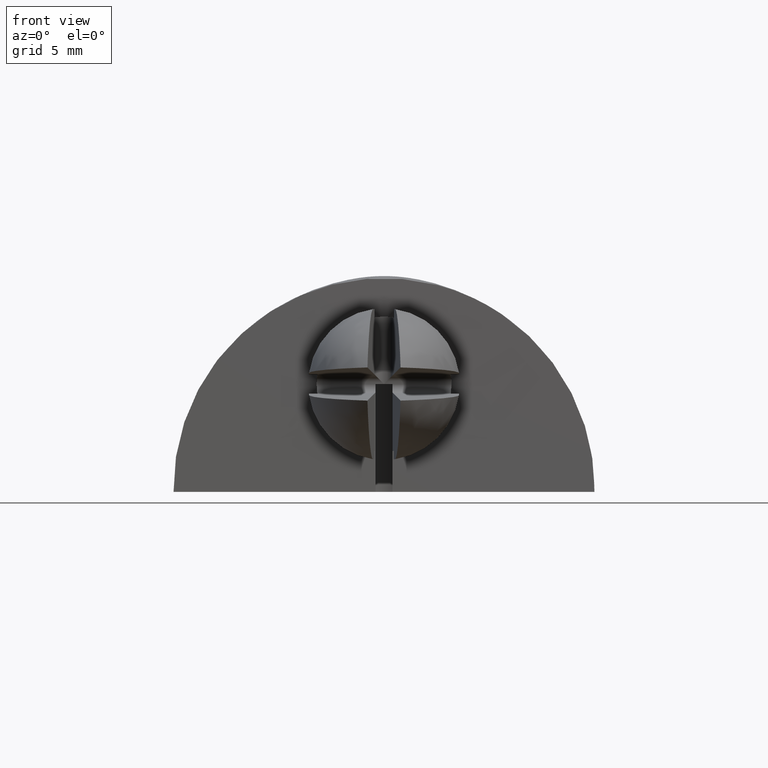
[diagram: clean part render]
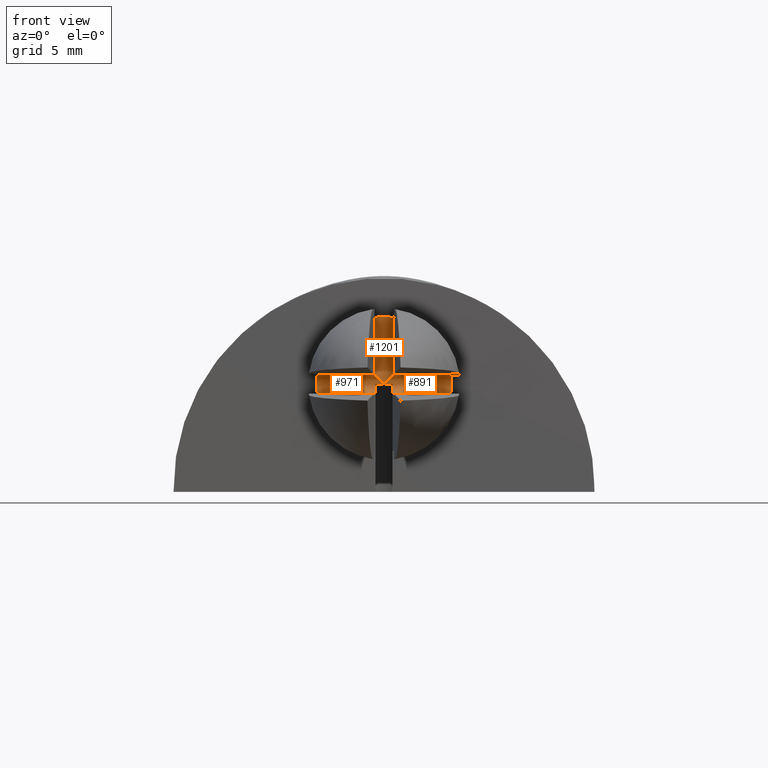
[diagram: same view with one multi-face feature highlighted, each face labeled with its STEP entity id]
A machine part, front view. The highlighted faces form ONE feature: a constant-radius fillet chain: 3 tangent blend faces with common blend radius 0.5463 mm. The faces share edges in the B-rep.
Their STEP definitions:
[1] entity #1201 (Cylinder):
#750=CARTESIAN_POINT('',(-0.545732086754612,-13.521886323051802,6.952727216294299));
#751=VERTEX_POINT('',#750);
#778=CARTESIAN_POINT('',(0.545732236117971,-13.521886323051802,6.952727216294299));
#779=VERTEX_POINT('',#778);
#838=CARTESIAN_POINT('',(0.000000074681687,-13.000313095812857,6.406995054858143));
#839=VERTEX_POINT('',#838);
#840=CARTESIAN_POINT('',(0.000000074681687,-13.000313095812857,6.406995054858143));
#841=CARTESIAN_POINT('',(0.054169785032137,-13.000306371065172,6.461164765208373));
#842=CARTESIAN_POINT('',(0.145354811590686,-13.013761102557666,6.552349791767163));
#843=CARTESIAN_POINT('',(0.257480881406956,-13.061298732863925,6.664475861583334));
#844=CARTESIAN_POINT('',(0.336144810935053,-13.113331745145452,6.743139791111439));
#845=CARTESIAN_POINT('',(0.396880929128812,-13.168286348849989,6.803875909305205));
#846=CARTESIAN_POINT('',(0.447912579797816,-13.230528566706532,6.854907559974201));
#847=CARTESIAN_POINT('',(0.494726204303738,-13.308286192255053,6.901721184480117));
#848=CARTESIAN_POINT('',(0.526743578818113,-13.391575698913329,6.933738558994499));
#849=CARTESIAN_POINT('',(0.541730803443777,-13.468574123877190,6.948725783620169));
#850=CARTESIAN_POINT('',(0.545056550351006,-13.506968579647939,6.952051530527363));
#851=CARTESIAN_POINT('',(0.545732236117971,-13.521886323051788,6.952727216294328));
#852=B_SPLINE_CURVE_WITH_KNOTS('',3,(#840,#841,#842,#843,#844,#845,#846,#847,#848,#849,#850,#851),.UNSPECIFIED.,.F.,.U.,(4,1,1,1,1,1,1,1,1,4),(10.187123041055859,12.485012343962701,14.055022829608575,15.136816794203327,16.161915738262429,17.106869546925196,17.987929486375847,19.216234108672943,19.925649110440105,20.374335947239640),.UNSPECIFIED.);
#853=EDGE_CURVE('',#839,#779,#852,.T.);
#954=CARTESIAN_POINT('',(-0.545732086754597,-13.521886323051788,6.952727216294328));
#955=CARTESIAN_POINT('',(-0.545056400987647,-13.506968579647896,6.952051530527363));
#956=CARTESIAN_POINT('',(-0.541730654080361,-13.468574123877119,6.948725783620162));
#957=CARTESIAN_POINT('',(-0.526743429454704,-13.391575698913201,6.933738558994456));
#958=CARTESIAN_POINT('',(-0.494726054940273,-13.308286192254926,6.901721184480067));
#959=CARTESIAN_POINT('',(-0.447912430434343,-13.230528566706383,6.854907559974116));
#960=CARTESIAN_POINT('',(-0.396880779765311,-13.168286348849854,6.803875909305098));
#961=CARTESIAN_POINT('',(-0.336144661571510,-13.113331745145338,6.743139791111297));
#962=CARTESIAN_POINT('',(-0.257480732043376,-13.061298732863833,6.664475861583178));
#963=CARTESIAN_POINT('',(-0.145354662227184,-13.013761102557616,6.552349791767043));
#964=CARTESIAN_POINT('',(-0.054169635668735,-13.000306371065193,6.461164765208267));
#965=CARTESIAN_POINT('',(0.000000074681687,-13.000313095812857,6.406995054858143));
#966=B_SPLINE_CURVE_WITH_KNOTS('',3,(#954,#955,#956,#957,#958,#959,#960,#961,#962,#963,#964,#965),.UNSPECIFIED.,.F.,.U.,(4,1,1,1,1,1,1,1,1,4),(0.0,0.448686836800807,1.158101838568068,2.386406460865503,3.267466400316445,4.212420208979411,5.237519153038774,6.319313117633659,7.889323603279465,10.187212906183920),.UNSPECIFIED.);
#967=EDGE_CURVE('',#751,#839,#966,.T.);
#1080=CARTESIAN_POINT('',(0.545732236117971,-13.521886323051802,10.362189495886689));
#1081=VERTEX_POINT('',#1080);
#1095=CARTESIAN_POINT('',(0.545732236117971,-13.521886323051802,6.952727216294299));
#1096=DIRECTION('',(0.0,0.0,1.0));
#1097=VECTOR('',#1096,3.409462279592390);
#1098=LINE('',#1095,#1097);
#1099=EDGE_CURVE('',#779,#1081,#1098,.T.);
#1163=CARTESIAN_POINT('',(0.000000074681687,-13.546604770344373,6.406995044858143));
#1164=DIRECTION('',(0.0,0.0,1.0));
#1165=DIRECTION('',(0.0,-1.0,0.0));
#1166=AXIS2_PLACEMENT_3D('',#1163,#1164,#1165);
#1167=CYLINDRICAL_SURFACE('',#1166,0.546291674531530);
#1168=ORIENTED_EDGE('',*,*,#967,.T.);
#1169=ORIENTED_EDGE('',*,*,#853,.T.);
#1170=ORIENTED_EDGE('',*,*,#1099,.T.);
#1171=CARTESIAN_POINT('',(-0.545732086754612,-13.521886323051802,10.362189495886689));
#1172=VERTEX_POINT('',#1171);
#1173=CARTESIAN_POINT('',(0.545732236117971,-13.521886323051802,10.362189495886689));
#1174=CARTESIAN_POINT('',(0.544255389469214,-13.489280605378994,10.362392888428793));
#1175=CARTESIAN_POINT('',(0.533368409645114,-13.409029675543088,10.363896022958130));
#1176=CARTESIAN_POINT('',(0.495410695762502,-13.307085128846261,10.368921958798829));
#1177=CARTESIAN_POINT('',(0.427820641655281,-13.199905709918568,10.376853876333740));
#1178=CARTESIAN_POINT('',(0.345705194983388,-13.116598496113440,10.385111765135804));
#1179=CARTESIAN_POINT('',(0.235007226867566,-13.048808348530606,10.393154326304092));
#1180=CARTESIAN_POINT('',(0.125477906491604,-13.010618597278487,10.398174672796564));
#1181=CARTESIAN_POINT('',(0.010409533561294,-12.996569983093437,10.400108450307123));
#1182=CARTESIAN_POINT('',(-0.105477080465910,-13.006276123303692,10.398767502548871));
#1183=CARTESIAN_POINT('',(-0.217032627878162,-13.040639755199145,10.394194926709261));
#1184=CARTESIAN_POINT('',(-0.330594908791824,-13.104836642121668,10.386421109854943));
#1185=CARTESIAN_POINT('',(-0.415609303080174,-13.185376902245039,10.378168039896103));
#1186=CARTESIAN_POINT('',(-0.488449904273118,-13.292484344223880,10.369814087496756));
#1187=CARTESIAN_POINT('',(-0.531529227192713,-13.399298542108447,10.364152345256876));
#1188=CARTESIAN_POINT('',(-0.544101139563764,-13.485878384320635,10.362414111282924));
#1189=CARTESIAN_POINT('',(-0.545732086754597,-13.521886323051802,10.362189495886689));
#1190=B_SPLINE_CURVE_WITH_KNOTS('',3,(#1173,#1174,#1175,#1176,#1177,#1178,#1179,#1180,#1181,#1182,#1183,#1184,#1185,#1186,#1187,#1188,#1189),.UNSPECIFIED.,.F.,.U.,(4,1,1,1,1,1,1,1,1,1,1,1,1,1,4),(0.0,0.980514617253305,2.417675436339381,3.239777989345114,4.778227823504796,5.901489211682783,7.120754699721731,8.239593074391896,9.361068997811255,10.591005222097618,11.721787900739772,13.260473237115718,14.078752806030783,15.604496281725648,16.687637391440184),.UNSPECIFIED.);
#1191=EDGE_CURVE('',#1081,#1172,#1190,.T.);
#1192=ORIENTED_EDGE('',*,*,#1191,.T.);
#1193=CARTESIAN_POINT('',(-0.545732086754612,-13.521886323051802,6.952727216294299));
#1194=DIRECTION('',(0.0,0.0,1.0));
#1195=VECTOR('',#1194,3.409462279592390);
#1196=LINE('',#1193,#1195);
#1197=EDGE_CURVE('',#751,#1172,#1196,.T.);
#1198=ORIENTED_EDGE('',*,*,#1197,.F.);
#1199=EDGE_LOOP('',(#1168,#1169,#1170,#1192,#1198));
#1200=FACE_OUTER_BOUND('',#1199,.T.);
#1201=ADVANCED_FACE('',(#1200),#1167,.F.);
[2] entity #971 (Cylinder):
#735=CARTESIAN_POINT('',(-3.961570545964349,-13.521886323051802,6.952727216294299));
#736=VERTEX_POINT('',#735);
#750=CARTESIAN_POINT('',(-0.545732086754612,-13.521886323051802,6.952727216294299));
#751=VERTEX_POINT('',#750);
#752=CARTESIAN_POINT('',(-0.545732086754612,-13.521886323051802,6.952727216294299));
#753=DIRECTION('',(-1.0,0.0,0.0));
#754=VECTOR('',#753,3.415838459209738);
#755=LINE('',#752,#754);
#756=EDGE_CURVE('',#751,#736,#755,.T.);
#838=CARTESIAN_POINT('',(0.000000074681687,-13.000313095812857,6.406995054858143));
#839=VERTEX_POINT('',#838);
#892=CARTESIAN_POINT('',(0.000048969066931,-13.546604770344352,6.406995054858122));
#893=DIRECTION('',(-1.0,0.0,0.0));
#894=DIRECTION('',(0.0,-1.0,0.0));
#895=AXIS2_PLACEMENT_3D('',#892,#893,#894);
#896=CYLINDRICAL_SURFACE('',#895,0.546291674531454);
#897=ORIENTED_EDGE('',*,*,#756,.T.);
#898=CARTESIAN_POINT('',(-3.963609572156081,-13.521886323051859,5.861262893421902));
#899=VERTEX_POINT('',#898);
#900=CARTESIAN_POINT('',(-3.961570545964349,-13.521886323051767,6.952727216294328));
#901=CARTESIAN_POINT('',(-3.961776671543483,-13.489293153799252,6.951250938014994));
#902=CARTESIAN_POINT('',(-3.963299943568167,-13.409052933410813,6.940368177642647));
#903=CARTESIAN_POINT('',(-3.968396842078860,-13.307114120425041,6.902420003060357));
#904=CARTESIAN_POINT('',(-3.976456725372117,-13.199922084041468,6.834830415353082));
#905=CARTESIAN_POINT('',(-3.984869936475633,-13.116602846286042,6.752707591295199));
#906=CARTESIAN_POINT('',(-3.993119646617998,-13.048807410347294,6.642001224971722));
#907=CARTESIAN_POINT('',(-3.998343200563546,-13.010618538866261,6.532471229628008));
#908=CARTESIAN_POINT('',(-4.000489807900969,-12.996570953891073,6.417410992895164));
#909=CARTESIAN_POINT('',(-3.999363805923558,-13.006273266768417,6.301538986160246));
#910=CARTESIAN_POINT('',(-3.994999353834693,-13.040627078736073,6.189994216057350));
#911=CARTESIAN_POINT('',(-3.987438112076980,-13.104812975494028,6.076431479700197));
#912=CARTESIAN_POINT('',(-3.979344244584304,-13.185350484718988,5.991407862862836));
#913=CARTESIAN_POINT('',(-3.971126173162695,-13.292469067678731,5.918550940943433));
#914=CARTESIAN_POINT('',(-3.965545381854625,-13.399294739491580,5.875465747697660));
#915=CARTESIAN_POINT('',(-3.963831064456159,-13.485881576797439,5.862893696012399));
#916=CARTESIAN_POINT('',(-3.963609572156081,-13.521886323051824,5.861262893421930));
#917=B_SPLINE_CURVE_WITH_KNOTS('',3,(#900,#901,#902,#903,#904,#905,#906,#907,#908,#909,#910,#911,#912,#913,#914,#915,#916),.UNSPECIFIED.,.F.,.U.,(4,1,1,1,1,1,1,1,1,1,1,1,1,1,4),(0.0,0.980137401755299,2.417356054818897,3.239608408861149,4.778399654168951,5.901901717982666,7.121270864140540,8.240048164858408,9.361354190438664,10.591012879687323,11.721614160542007,13.260231668706643,14.078563764997705,15.604609098565749,16.687652464579749),.UNSPECIFIED.);
#918=EDGE_CURVE('',#736,#899,#917,.T.);
#919=ORIENTED_EDGE('',*,*,#918,.T.);
#920=CARTESIAN_POINT('',(-0.545732086754612,-13.521886323051859,5.861262893421902));
#921=VERTEX_POINT('',#920);
#922=CARTESIAN_POINT('',(-0.545732086754612,-13.521886323051859,5.861262893421902));
#923=DIRECTION('',(-1.0,0.0,0.0));
#924=VECTOR('',#923,3.417877485401469);
#925=LINE('',#922,#924);
#926=EDGE_CURVE('',#921,#899,#925,.T.);
#927=ORIENTED_EDGE('',*,*,#926,.F.);
#928=CARTESIAN_POINT('',(-0.499435276735568,-13.325247765898681,5.907559703440931));
#929=VERTEX_POINT('',#928);
#930=CARTESIAN_POINT('',(-0.545732086754597,-13.521886323051824,5.861262893421923));
#931=CARTESIAN_POINT('',(-0.544716305069905,-13.499459965612523,5.862278675106602));
#932=CARTESIAN_POINT('',(-0.539199110764471,-13.448270878030300,5.867795869412042));
#933=CARTESIAN_POINT('',(-0.522460125555895,-13.382223204213616,5.884534854620611));
#934=CARTESIAN_POINT('',(-0.506293710871390,-13.340723913276150,5.900701269305102));
#935=CARTESIAN_POINT('',(-0.499434816147328,-13.325248174166902,5.907560164029178));
#936=B_SPLINE_CURVE_WITH_KNOTS('',3,(#930,#931,#932,#933,#934,#935),.UNSPECIFIED.,.F.,.U.,(4,1,1,4),(0.0,0.674964631209506,1.546165238612820,2.094022014163520),.UNSPECIFIED.);
#937=EDGE_CURVE('',#921,#929,#936,.T.);
#938=ORIENTED_EDGE('',*,*,#937,.T.);
#939=CARTESIAN_POINT('',(-0.499435270915882,-13.000313097993619,6.406946242369010));
#940=VERTEX_POINT('',#939);
#941=CARTESIAN_POINT('',(-0.499435270913175,-13.546604770344315,6.406995054858142));
#942=DIRECTION('',(-1.0,0.0,0.0));
#943=DIRECTION('',(0.0,0.045247710051117,0.998975797872566));
#944=AXIS2_PLACEMENT_3D('',#941,#942,#943);
#945=CIRCLE('',#944,0.546291674531454);
#946=EDGE_CURVE('',#940,#929,#945,.T.);
#947=ORIENTED_EDGE('',*,*,#946,.F.);
#948=CARTESIAN_POINT('',(0.000000074681687,-13.000313098000291,6.406946167775040));
#949=DIRECTION('',(-1.0,0.0,0.0));
#950=VECTOR('',#949,0.499435345597568);
#951=LINE('',#948,#950);
#952=EDGE_CURVE('',#839,#940,#951,.T.);
#953=ORIENTED_EDGE('',*,*,#952,.F.);
#954=CARTESIAN_POINT('',(-0.545732086754597,-13.521886323051788,6.952727216294328));
#955=CARTESIAN_POINT('',(-0.545056400987647,-13.506968579647896,6.952051530527363));
#956=CARTESIAN_POINT('',(-0.541730654080361,-13.468574123877119,6.948725783620162));
#957=CARTESIAN_POINT('',(-0.526743429454704,-13.391575698913201,6.933738558994456));
#958=CARTESIAN_POINT('',(-0.494726054940273,-13.308286192254926,6.901721184480067));
#959=CARTESIAN_POINT('',(-0.447912430434343,-13.230528566706383,6.854907559974116));
#960=CARTESIAN_POINT('',(-0.396880779765311,-13.168286348849854,6.803875909305098));
#961=CARTESIAN_POINT('',(-0.336144661571510,-13.113331745145338,6.743139791111297));
#962=CARTESIAN_POINT('',(-0.257480732043376,-13.061298732863833,6.664475861583178));
#963=CARTESIAN_POINT('',(-0.145354662227184,-13.013761102557616,6.552349791767043));
#964=CARTESIAN_POINT('',(-0.054169635668735,-13.000306371065193,6.461164765208267));
#965=CARTESIAN_POINT('',(0.000000074681687,-13.000313095812857,6.406995054858143));
#966=B_SPLINE_CURVE_WITH_KNOTS('',3,(#954,#955,#956,#957,#958,#959,#960,#961,#962,#963,#964,#965),.UNSPECIFIED.,.F.,.U.,(4,1,1,1,1,1,1,1,1,4),(0.0,0.448686836800807,1.158101838568068,2.386406460865503,3.267466400316445,4.212420208979411,5.237519153038774,6.319313117633659,7.889323603279465,10.187212906183920),.UNSPECIFIED.);
#967=EDGE_CURVE('',#751,#839,#966,.T.);
#968=ORIENTED_EDGE('',*,*,#967,.F.);
#969=EDGE_LOOP('',(#897,#919,#927,#938,#947,#953,#968));
#970=FACE_OUTER_BOUND('',#969,.T.);
#971=ADVANCED_FACE('',(#970),#896,.F.);
[3] entity #891 (Cylinder):
#778=CARTESIAN_POINT('',(0.545732236117971,-13.521886323051802,6.952727216294299));
#779=VERTEX_POINT('',#778);
#786=CARTESIAN_POINT('',(3.961570695327673,-13.521886323051802,6.952727216294299));
#787=VERTEX_POINT('',#786);
#788=CARTESIAN_POINT('',(3.961570695327673,-13.521886323051802,6.952727216294299));
#789=DIRECTION('',(-1.0,0.0,0.0));
#790=VECTOR('',#789,3.415838459209702);
#791=LINE('',#788,#790);
#792=EDGE_CURVE('',#787,#779,#791,.T.);
#812=CARTESIAN_POINT('',(4.000101951366903,-13.546604770344352,6.406995054858122));
#813=DIRECTION('',(-1.0,0.0,0.0));
#814=DIRECTION('',(0.0,-1.0,0.0));
#815=AXIS2_PLACEMENT_3D('',#812,#813,#814);
#816=CYLINDRICAL_SURFACE('',#815,0.546291674531454);
#817=CARTESIAN_POINT('',(3.963609721519411,-13.521886323051859,5.861262893421902));
#818=VERTEX_POINT('',#817);
#819=CARTESIAN_POINT('',(3.963609721519411,-13.521886323051859,5.861262893421923));
#820=CARTESIAN_POINT('',(3.963851928713829,-13.482514261030332,5.863046215550682));
#821=CARTESIAN_POINT('',(3.965964552919836,-13.382377164450844,5.878526265436776));
#822=CARTESIAN_POINT('',(3.973082015735677,-13.261576863341745,5.933952214613584));
#823=CARTESIAN_POINT('',(3.983117766061284,-13.144880284218353,6.028588548866274));
#824=CARTESIAN_POINT('',(3.992588608009562,-13.059600053110096,6.141717745729572));
#825=CARTESIAN_POINT('',(3.998865272802242,-13.010262567483537,6.278709182608615));
#826=CARTESIAN_POINT('',(4.000479644123999,-12.996852478124715,6.401075435998301));
#827=CARTESIAN_POINT('',(3.998746289065011,-13.007758168204994,6.527237845468861));
#828=CARTESIAN_POINT('',(3.992000231285196,-13.056426476139102,6.666343101236571));
#829=CARTESIAN_POINT('',(3.981968362530139,-13.142605411854682,6.782865339444861));
#830=CARTESIAN_POINT('',(3.971506402753072,-13.258490303310637,6.878626248720693));
#831=CARTESIAN_POINT('',(3.963990620098500,-13.382402427422917,6.935467415238342));
#832=CARTESIAN_POINT('',(3.961819681454458,-13.482515920766282,6.950943969341779));
#833=CARTESIAN_POINT('',(3.961570695327673,-13.521886323051802,6.952727216294314));
#834=B_SPLINE_CURVE_WITH_KNOTS('',3,(#819,#820,#821,#822,#823,#824,#825,#826,#827,#828,#829,#830,#831,#832,#833),.UNSPECIFIED.,.F.,.U.,(4,1,1,1,1,1,1,1,1,1,1,1,4),(0.0,1.184722287444064,3.017941154572427,3.939346421470016,5.685773819775328,7.223867045552444,8.269329718439403,9.360853967101892,11.001856408974211,12.646066869199100,13.669641626860704,15.501973315303417,16.686485451753448),.UNSPECIFIED.);
#835=EDGE_CURVE('',#818,#787,#834,.T.);
#836=ORIENTED_EDGE('',*,*,#835,.T.);
#837=ORIENTED_EDGE('',*,*,#792,.T.);
#838=CARTESIAN_POINT('',(0.000000074681687,-13.000313095812857,6.406995054858143));
#839=VERTEX_POINT('',#838);
#840=CARTESIAN_POINT('',(0.000000074681687,-13.000313095812857,6.406995054858143));
#841=CARTESIAN_POINT('',(0.054169785032137,-13.000306371065172,6.461164765208373));
#842=CARTESIAN_POINT('',(0.145354811590686,-13.013761102557666,6.552349791767163));
#843=CARTESIAN_POINT('',(0.257480881406956,-13.061298732863925,6.664475861583334));
#844=CARTESIAN_POINT('',(0.336144810935053,-13.113331745145452,6.743139791111439));
#845=CARTESIAN_POINT('',(0.396880929128812,-13.168286348849989,6.803875909305205));
#846=CARTESIAN_POINT('',(0.447912579797816,-13.230528566706532,6.854907559974201));
#847=CARTESIAN_POINT('',(0.494726204303738,-13.308286192255053,6.901721184480117));
#848=CARTESIAN_POINT('',(0.526743578818113,-13.391575698913329,6.933738558994499));
#849=CARTESIAN_POINT('',(0.541730803443777,-13.468574123877190,6.948725783620169));
#850=CARTESIAN_POINT('',(0.545056550351006,-13.506968579647939,6.952051530527363));
#851=CARTESIAN_POINT('',(0.545732236117971,-13.521886323051788,6.952727216294328));
#852=B_SPLINE_CURVE_WITH_KNOTS('',3,(#840,#841,#842,#843,#844,#845,#846,#847,#848,#849,#850,#851),.UNSPECIFIED.,.F.,.U.,(4,1,1,1,1,1,1,1,1,4),(10.187123041055859,12.485012343962701,14.055022829608575,15.136816794203327,16.161915738262429,17.106869546925196,17.987929486375847,19.216234108672943,19.925649110440105,20.374335947239640),.UNSPECIFIED.);
#853=EDGE_CURVE('',#839,#779,#852,.T.);
#854=ORIENTED_EDGE('',*,*,#853,.F.);
#855=CARTESIAN_POINT('',(0.499435420344405,-13.000313097994656,6.406946230725964));
#856=VERTEX_POINT('',#855);
#857=CARTESIAN_POINT('',(0.499435420344405,-13.000313098000291,6.406946167775040));
#858=DIRECTION('',(-1.0,0.0,0.0));
#859=VECTOR('',#858,0.499435345662718);
#860=LINE('',#857,#859);
#861=EDGE_CURVE('',#856,#839,#860,.T.);
#862=ORIENTED_EDGE('',*,*,#861,.F.);
#863=CARTESIAN_POINT('',(0.499435414524733,-13.325247739784395,5.907559715015161));
#864=VERTEX_POINT('',#863);
#865=CARTESIAN_POINT('',(0.499435420347126,-13.546604770344315,6.406995054858121));
#866=DIRECTION('',(1.0,0.0,0.0));
#867=DIRECTION('',(0.0,0.045247710051117,0.998975797872566));
#868=AXIS2_PLACEMENT_3D('',#865,#866,#867);
#869=CIRCLE('',#868,0.546291674531454);
#870=EDGE_CURVE('',#864,#856,#869,.T.);
#871=ORIENTED_EDGE('',*,*,#870,.F.);
#872=CARTESIAN_POINT('',(0.545732236117971,-13.521886323051859,5.861262893421902));
#873=VERTEX_POINT('',#872);
#874=CARTESIAN_POINT('',(0.499434953936706,-13.325248148052474,5.907560175603173));
#875=CARTESIAN_POINT('',(0.506293853213457,-13.340723895252374,5.900701276326430));
#876=CARTESIAN_POINT('',(0.522460272455952,-13.382223194493960,5.884534857083956));
#877=CARTESIAN_POINT('',(0.539199260127859,-13.448270878030300,5.867795869412042));
#878=CARTESIAN_POINT('',(0.544716454433278,-13.499459965612523,5.862278675106602));
#879=CARTESIAN_POINT('',(0.545732236117971,-13.521886323051824,5.861262893421923));
#880=B_SPLINE_CURVE_WITH_KNOTS('',3,(#874,#875,#876,#877,#878,#879),.UNSPECIFIED.,.F.,.U.,(4,1,1,4),(18.280313624917028,18.828170708627269,19.699371316030277,20.374335947239736),.UNSPECIFIED.);
#881=EDGE_CURVE('',#864,#873,#880,.T.);
#882=ORIENTED_EDGE('',*,*,#881,.T.);
#883=CARTESIAN_POINT('',(3.963609721519411,-13.521886323051859,5.861262893421902));
#884=DIRECTION('',(-1.0,0.0,0.0));
#885=VECTOR('',#884,3.417877485401441);
#886=LINE('',#883,#885);
#887=EDGE_CURVE('',#818,#873,#886,.T.);
#888=ORIENTED_EDGE('',*,*,#887,.F.);
#889=EDGE_LOOP('',(#836,#837,#854,#862,#871,#882,#888));
#890=FACE_OUTER_BOUND('',#889,.T.);
#891=ADVANCED_FACE('',(#890),#816,.F.);